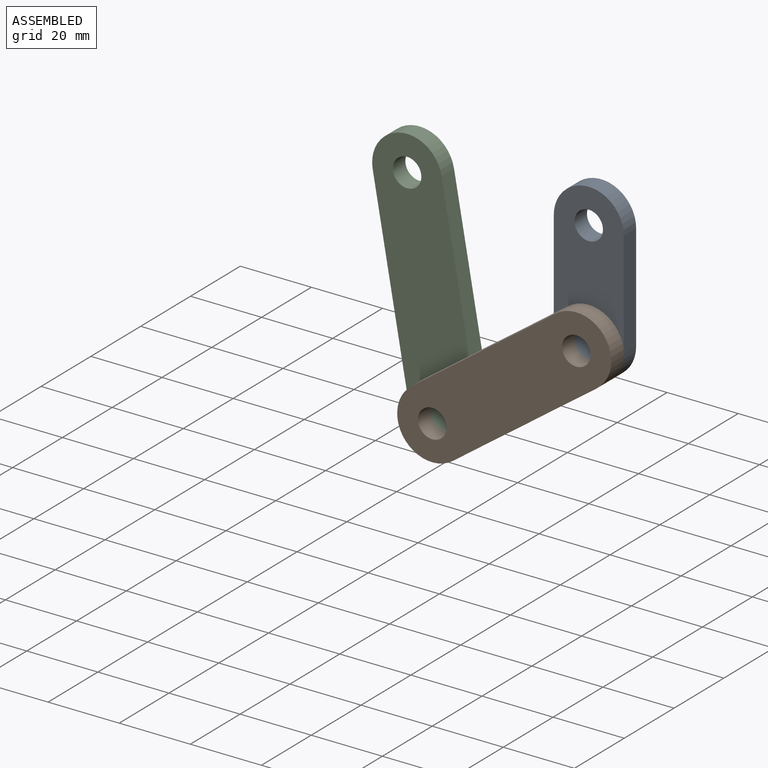
[diagram: assembled view]
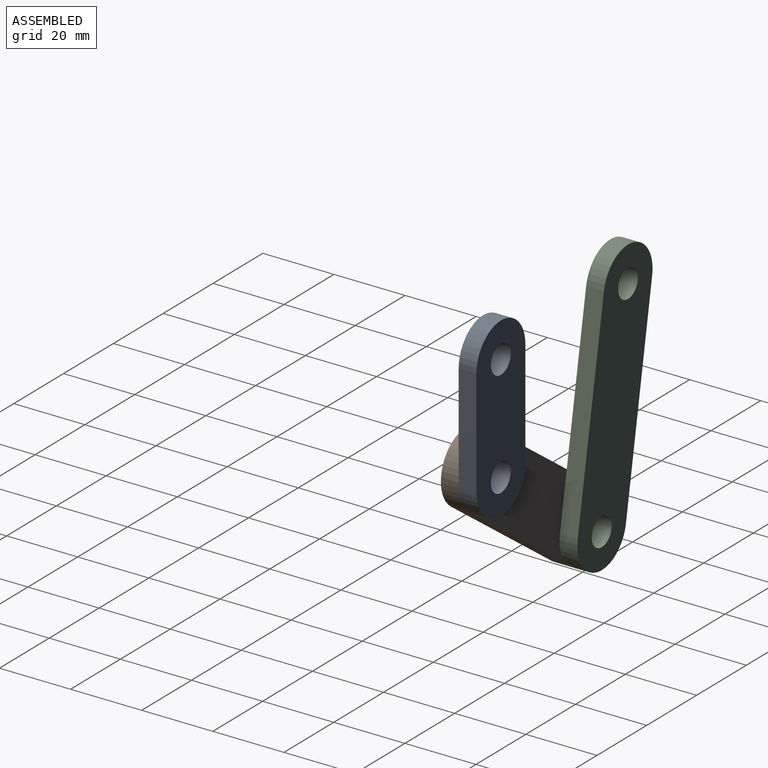
[diagram: assembled view, second angle]
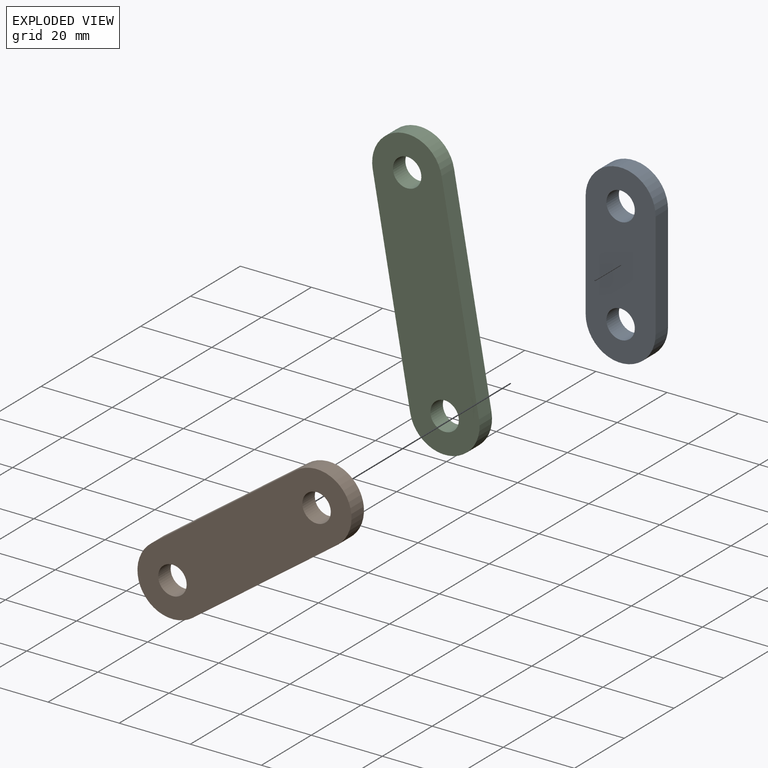
[diagram: exploded view]
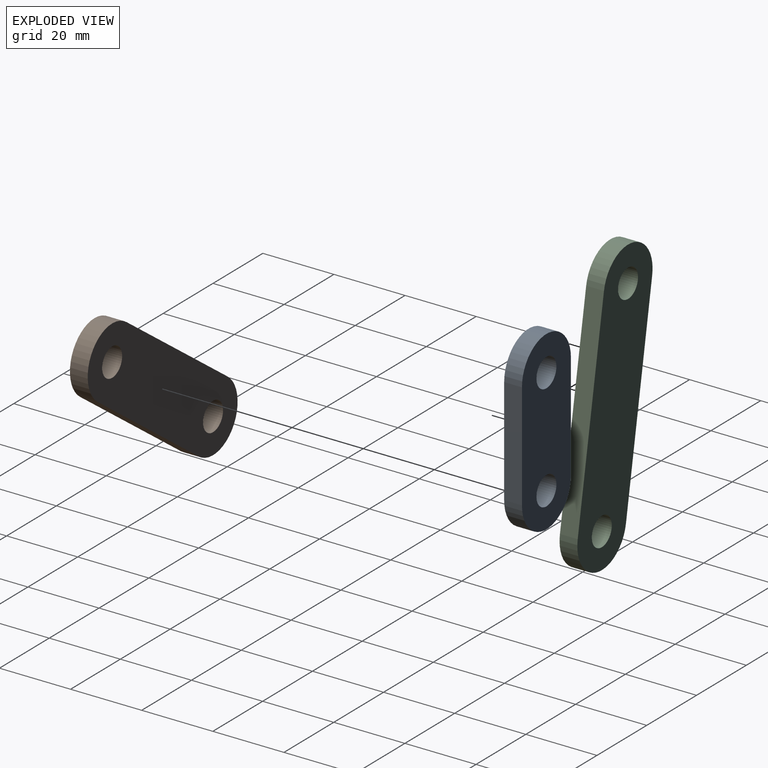
[diagram: exploded view, second angle]
ASSEMBLY  parts=3 mates=2
PART A: 8 faces, bbox 49.7x5x19.7 mm
  f0: plane 30x5mm, normal (0,0,-1), area 150mm2, adj f1,f5,f6,f7
  f1: cylinder r=9.84mm len=19.67mm, axis (0,1,0), area 154.5mm2, adj f0,f2,f6,f7
  f2: plane 30x5mm, normal (0,0,1), area 150mm2, adj f1,f5,f6,f7
  f3: cylinder r=4mm len=8mm, axis (0,1,0), area 125.7mm2, adj f6,f7
  f4: cylinder r=4mm len=8mm, axis (0,1,0), area 125.7mm2, adj f6,f7
  f5: cylinder r=9.84mm len=19.67mm, axis (0,1,0), area 154.5mm2, adj f0,f2,f6,f7
  f6: plane 49.67x19.67mm, normal (0,-1,0), area 793.4mm2, adj f0,f1,f2,f3,f4,f5
  f7: plane 49.67x19.67mm, normal (0,1,0), area 793.4mm2, adj f0,f1,f2,f3,f4,f5
PART B: 8 faces, bbox 69.7x5x19.7 mm
  f0: cylinder r=9.84mm len=19.67mm, axis (0,1,0), area 154.5mm2, adj f1,f5,f6,f7
  f1: plane 50x5mm, normal (0,0,1), area 250mm2, adj f0,f2,f6,f7
  f2: cylinder r=9.84mm len=19.67mm, axis (0,1,0), area 154.5mm2, adj f1,f5,f6,f7
  f3: cylinder r=4mm len=8mm, axis (0,1,0), area 125.7mm2, adj f6,f7
  f4: cylinder r=4mm len=8mm, axis (0,1,0), area 125.7mm2, adj f6,f7
  f5: plane 50x5mm, normal (0,0,-1), area 250mm2, adj f0,f2,f6,f7
  f6: plane 69.67x19.67mm, normal (0,-1,0), area 1186.8mm2, adj f0,f1,f2,f3,f4,f5
  f7: plane 69.67x19.67mm, normal (0,1,0), area 1186.8mm2, adj f0,f1,f2,f3,f4,f5
PART C: 8 faces, bbox 79.7x5x19.7 mm
  f0: plane 60x5mm, normal (0,0,-1), area 300mm2, adj f1,f5,f6,f7
  f1: cylinder r=9.84mm len=19.67mm, axis (0,1,0), area 154.5mm2, adj f0,f2,f6,f7
  f2: plane 60x5mm, normal (0,0,1), area 300mm2, adj f1,f5,f6,f7
  f3: cylinder r=4mm len=8mm, axis (0,1,0), area 125.7mm2, adj f6,f7
  f4: cylinder r=4mm len=8mm, axis (0,1,0), area 125.7mm2, adj f6,f7
  f5: cylinder r=9.84mm len=19.67mm, axis (0,1,0), area 154.5mm2, adj f0,f2,f6,f7
  f6: plane 79.67x19.67mm, normal (0,-1,0), area 1383.5mm2, adj f0,f1,f2,f3,f4,f5
  f7: plane 79.67x19.67mm, normal (0,1,0), area 1383.5mm2, adj f0,f1,f2,f3,f4,f5
PLACE A rot(axis=(0.71,0,0.71),180deg) t=(0,2.5,-15)mm
PLACE B rot(axis=(0,-1,0),35.9deg) t=(-20.26,-2.5,-44.64)mm
PLACE C rot(axis=(0,1,0),79.9deg) t=(-45.79,2.5,-29.76)mm
MATE revolute C.f1 <-> B.f2  axis (0,-1,0) through (-40.52,0,-59.29)mm
MATE revolute B.f0 <-> A.f3  axis (0,1,0) through (0,0,-30)mm
